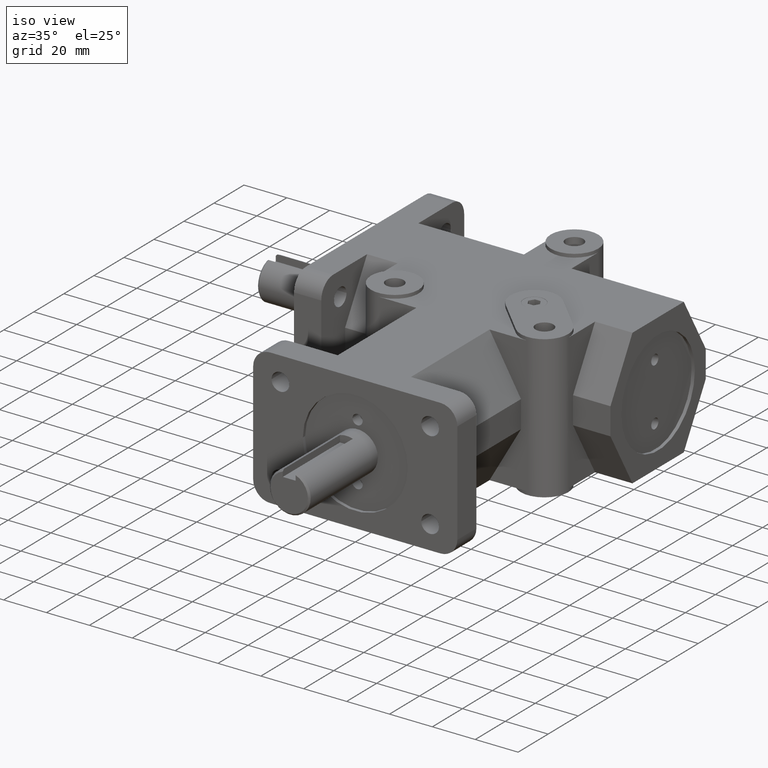
[diagram: clean part render]
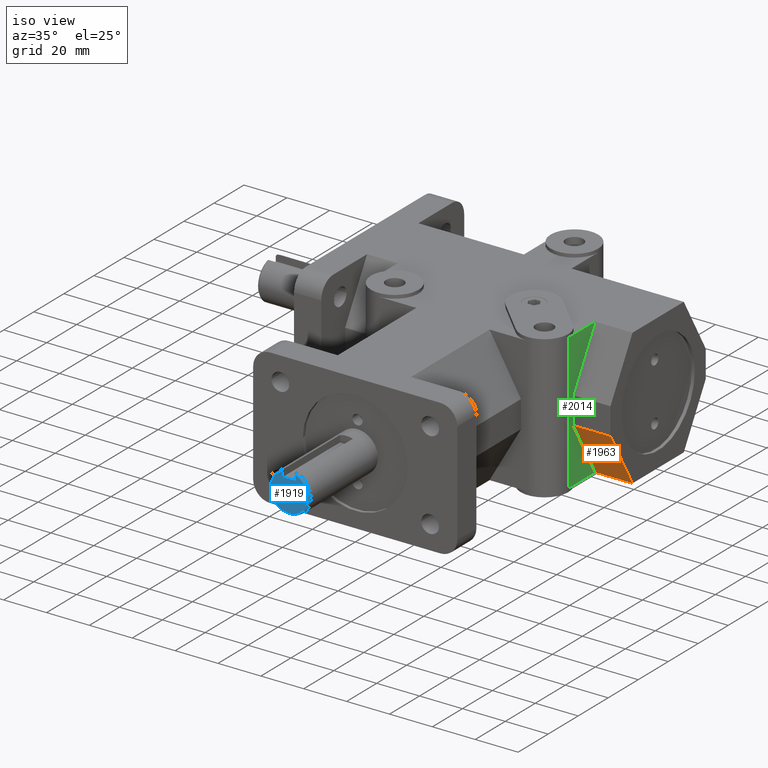
[diagram: same view with three faces highlighted in distinct colors, each labeled with its STEP entity id]
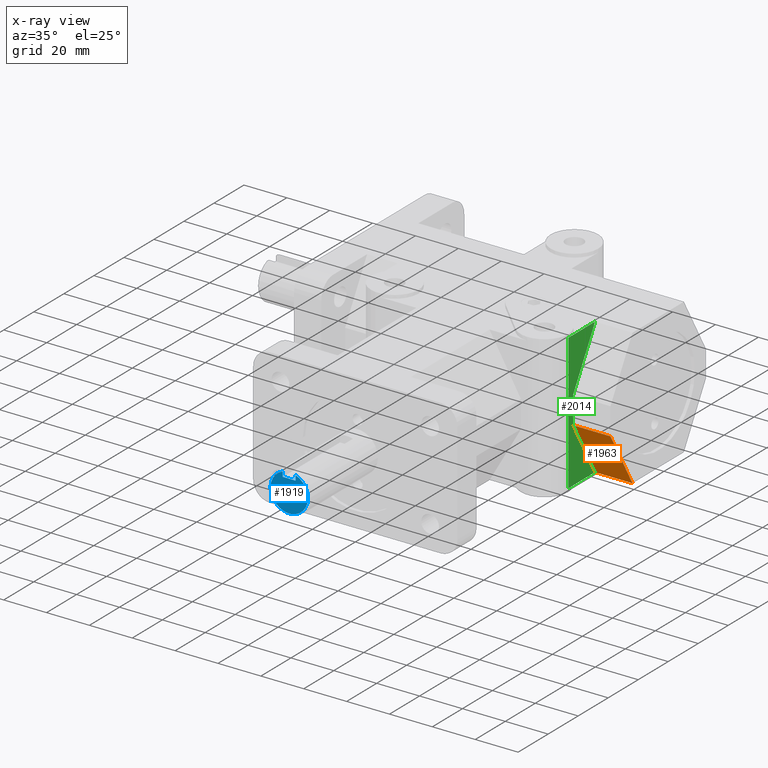
[diagram: x-ray of the same camera — body ghosted, the three highlighted faces saturated]
A machine part, iso view with three faces highlighted in distinct colors.
The next image is the same camera in x-ray (body ghosted, the three faces saturated) — at least one of them is partly hidden behind the body in this view.
Their STEP definitions:

[orange] entity #1963 — the highlighted planar face has unit normal (0, -0.866, -0.5).
#86=PLANE('',#2151);
#181=FACE_OUTER_BOUND('',#309,.T.);
#309=EDGE_LOOP('',(#1612,#1613,#1614,#1615));
#476=LINE('',#3138,#667);
#509=LINE('',#3215,#700);
#510=LINE('',#3217,#701);
#511=LINE('',#3218,#702);
#667=VECTOR('',#2520,1.);
#700=VECTOR('',#2591,1.);
#701=VECTOR('',#2592,1.);
#702=VECTOR('',#2593,1.);
#971=VERTEX_POINT('',#3135);
#972=VERTEX_POINT('',#3137);
#997=VERTEX_POINT('',#3214);
#998=VERTEX_POINT('',#3216);
#1191=EDGE_CURVE('',#972,#971,#476,.T.);
#1229=EDGE_CURVE('',#971,#997,#509,.T.);
#1230=EDGE_CURVE('',#997,#998,#510,.T.);
#1231=EDGE_CURVE('',#998,#972,#511,.F.);
#1612=ORIENTED_EDGE('',*,*,#1229,.T.);
#1613=ORIENTED_EDGE('',*,*,#1230,.T.);
#1614=ORIENTED_EDGE('',*,*,#1231,.T.);
#1615=ORIENTED_EDGE('',*,*,#1191,.T.);
#1963=ADVANCED_FACE('',(#181),#86,.T.);
#2151=AXIS2_PLACEMENT_3D('',#3213,#2589,#2590);
#2520=DIRECTION('',(1.,0.,0.));
#2589=DIRECTION('center_axis',(0.,-0.866025504730542,-0.499999825156179));
#2590=DIRECTION('ref_axis',(0.,-0.499999825156179,0.866025504730542));
#2591=DIRECTION('',(0.,-0.499999825156179,0.866025504730542));
#2592=DIRECTION('',(-1.,0.,0.));
#2593=DIRECTION('',(0.,-0.499999825156179,0.866025504730542));
#3135=CARTESIAN_POINT('',(63.5,94.03969,-31.75));
#3137=CARTESIAN_POINT('',(46.0375,94.03969,-31.75));
#3138=CARTESIAN_POINT('',(23.01875,94.03969,-31.75));
#3213=CARTESIAN_POINT('Origin',(23.01875,86.707345,-19.05));
#3214=CARTESIAN_POINT('',(63.5,79.375,-6.35));
#3215=CARTESIAN_POINT('',(63.5,193.061150230565,-203.260280125686));
#3216=CARTESIAN_POINT('',(46.0375,79.375,-6.35));
#3217=CARTESIAN_POINT('',(23.01875,79.375,-6.35));
#3218=CARTESIAN_POINT('',(46.0375,81.2694827695608,-9.63134194086908));

[blue] entity #1919 — the highlighted planar face has unit normal (0, -1, 0).
#61=PLANE('',#2053);
#137=FACE_OUTER_BOUND('',#247,.T.);
#247=EDGE_LOOP('',(#1354,#1355,#1356,#1357));
#390=LINE('',#2841,#581);
#392=LINE('',#2854,#583);
#396=LINE('',#2860,#587);
#581=VECTOR('',#2258,1.);
#583=VECTOR('',#2262,1.);
#587=VECTOR('',#2268,1.);
#776=CIRCLE('',#2054,8.738);
#860=VERTEX_POINT('',#2838);
#861=VERTEX_POINT('',#2840);
#864=VERTEX_POINT('',#2849);
#865=VERTEX_POINT('',#2853);
#1048=EDGE_CURVE('',#861,#860,#390,.T.);
#1052=EDGE_CURVE('',#865,#864,#392,.T.);
#1056=EDGE_CURVE('',#860,#865,#396,.T.);
#1062=EDGE_CURVE('',#861,#864,#776,.T.);
#1354=ORIENTED_EDGE('',*,*,#1048,.T.);
#1355=ORIENTED_EDGE('',*,*,#1056,.T.);
#1356=ORIENTED_EDGE('',*,*,#1052,.T.);
#1357=ORIENTED_EDGE('',*,*,#1062,.F.);
#1919=ADVANCED_FACE('',(#137),#61,.T.);
#2053=AXIS2_PLACEMENT_3D('',#2870,#2282,#2283);
#2054=AXIS2_PLACEMENT_3D('',#2871,#2284,#2285);
#2258=DIRECTION('',(0.,0.,-1.));
#2262=DIRECTION('',(0.,0.,1.));
#2268=DIRECTION('',(-1.,0.,0.));
#2282=DIRECTION('center_axis',(0.,-1.,0.));
#2283=DIRECTION('ref_axis',(0.,0.,1.));
#2284=DIRECTION('center_axis',(0.,1.,0.));
#2285=DIRECTION('ref_axis',(-1.,0.,0.));
#2838=CARTESIAN_POINT('',(3.,-44.,5.9));
#2840=CARTESIAN_POINT('',(3.,-44.,8.20686566235856));
#2841=CARTESIAN_POINT('',(3.,-44.,2.95));
#2849=CARTESIAN_POINT('',(-3.,-44.,8.20686566235856));
#2853=CARTESIAN_POINT('',(-3.,-44.,5.9));
#2854=CARTESIAN_POINT('',(-3.,-44.,4.75));
#2860=CARTESIAN_POINT('',(-1.5,-44.,5.9));
#2870=CARTESIAN_POINT('Origin',(0.,-44.,0.));
#2871=CARTESIAN_POINT('Origin',(0.,-44.,0.));

[green] entity #2014 — the highlighted planar face has unit normal (1, 0, 0).
#122=PLANE('',#2223);
#232=FACE_OUTER_BOUND('',#377,.T.);
#377=EDGE_LOOP('',(#1864,#1865,#1866,#1867,#1868,#1869));
#446=LINE('',#3071,#637);
#477=LINE('',#3140,#668);
#511=LINE('',#3218,#702);
#514=LINE('',#3224,#705);
#516=LINE('',#3227,#707);
#535=LINE('',#3303,#726);
#637=VECTOR('',#2474,1.);
#668=VECTOR('',#2521,1.);
#702=VECTOR('',#2593,1.);
#705=VECTOR('',#2598,1.);
#707=VECTOR('',#2602,1.);
#726=VECTOR('',#2693,1.);
#942=VERTEX_POINT('',#3068);
#943=VERTEX_POINT('',#3070);
#972=VERTEX_POINT('',#3137);
#973=VERTEX_POINT('',#3139);
#998=VERTEX_POINT('',#3216);
#1000=VERTEX_POINT('',#3222);
#1155=EDGE_CURVE('',#943,#942,#446,.T.);
#1192=EDGE_CURVE('',#973,#972,#477,.T.);
#1231=EDGE_CURVE('',#998,#972,#511,.F.);
#1234=EDGE_CURVE('',#1000,#998,#514,.T.);
#1236=EDGE_CURVE('',#943,#1000,#516,.F.);
#1273=EDGE_CURVE('',#942,#973,#535,.T.);
#1864=ORIENTED_EDGE('',*,*,#1192,.T.);
#1865=ORIENTED_EDGE('',*,*,#1231,.F.);
#1866=ORIENTED_EDGE('',*,*,#1234,.F.);
#1867=ORIENTED_EDGE('',*,*,#1236,.F.);
#1868=ORIENTED_EDGE('',*,*,#1155,.T.);
#1869=ORIENTED_EDGE('',*,*,#1273,.T.);
#2014=ADVANCED_FACE('',(#232),#122,.T.);
#2223=AXIS2_PLACEMENT_3D('',#3390,#2799,#2800);
#2474=DIRECTION('',(0.,-1.,0.));
#2521=DIRECTION('',(0.,1.,0.));
#2593=DIRECTION('',(0.,-0.499999825156179,0.866025504730542));
#2598=DIRECTION('',(0.,0.,-1.));
#2602=DIRECTION('',(0.,0.499999825156179,0.866025504730542));
#2693=DIRECTION('',(0.,0.,-1.));
#2799=DIRECTION('center_axis',(1.,0.,0.));
#2800=DIRECTION('ref_axis',(0.,-1.,0.));
#3068=CARTESIAN_POINT('',(46.0375,76.1999999999999,31.75));
#3070=CARTESIAN_POINT('',(46.0375,94.03969,31.75));
#3071=CARTESIAN_POINT('',(46.0375,76.2,31.75));
#3137=CARTESIAN_POINT('',(46.0375,94.03969,-31.75));
#3139=CARTESIAN_POINT('',(46.0375,76.1999999999999,-31.75));
#3140=CARTESIAN_POINT('',(46.0375,79.4999528726981,-31.75));
#3216=CARTESIAN_POINT('',(46.0375,79.375,-6.35));
#3218=CARTESIAN_POINT('',(46.0375,81.2694827695608,-9.63134194086908));
#3222=CARTESIAN_POINT('',(46.0375,79.375,6.35));
#3224=CARTESIAN_POINT('',(46.0375,79.375,0.));
#3227=CARTESIAN_POINT('',(46.0375,81.2694827695608,9.63134194086908));
#3303=CARTESIAN_POINT('',(46.0375,76.1999999999999,0.));
#3390=CARTESIAN_POINT('Origin',(46.0375,76.1999999999999,0.));